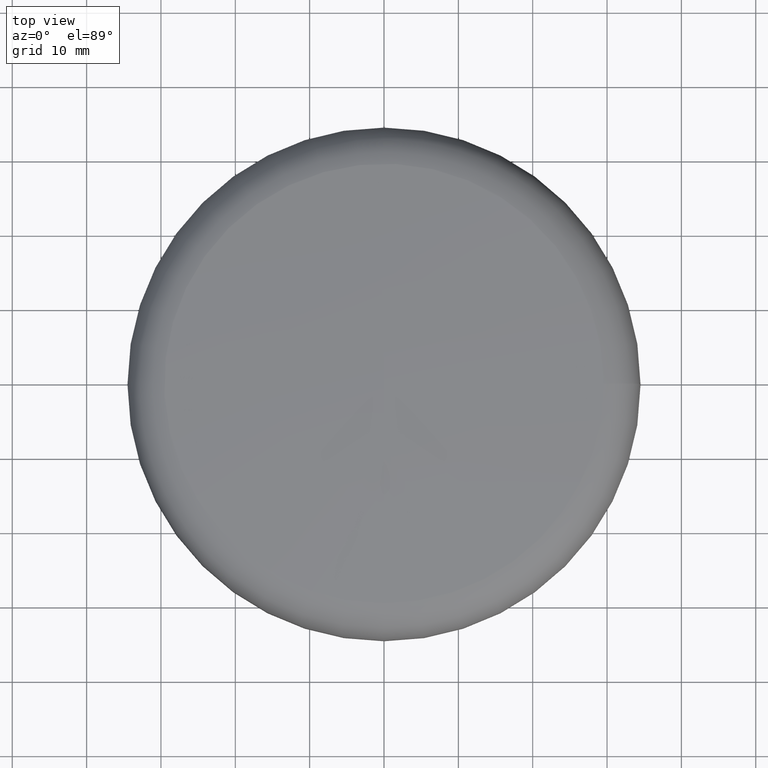
[diagram: clean part render]
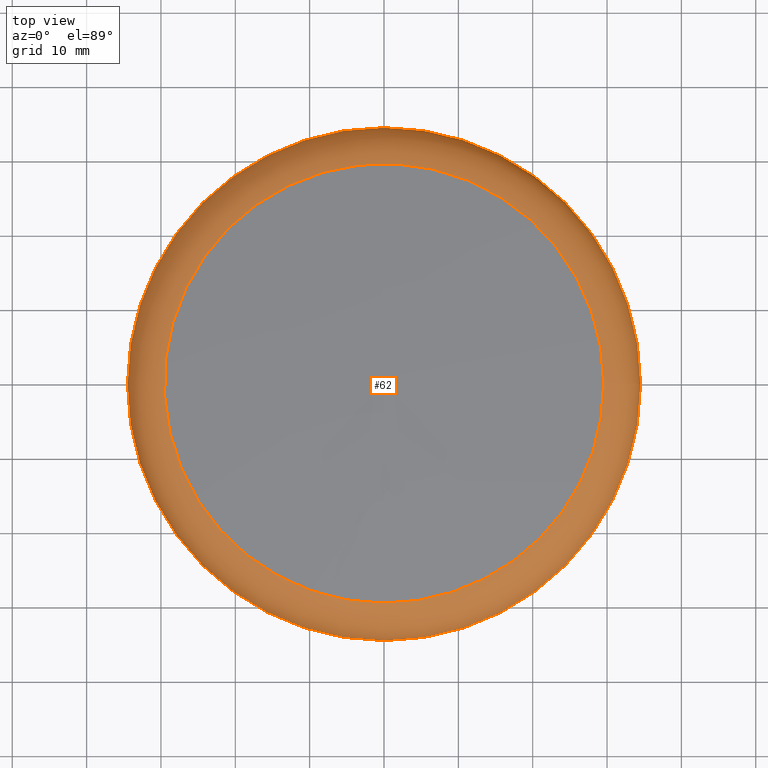
[diagram: same view with one face highlighted and labeled with its STEP entity id]
A machine part, top view. The second image highlights one B-rep face of the part: STEP entity #62.
In plain terms, the highlighted toroidal blend (fillet) surface has major radius 29 mm and minor (blend) radius 5.5 mm.
Its self-contained STEP definition (entity closure, byte-faithful):
#40=TOROIDAL_SURFACE('',#150,29.,5.50000000000017);
#43=FACE_BOUND('',#77,.T.);
#44=FACE_BOUND('',#78,.T.);
#62=ADVANCED_FACE('',(#43,#44),#40,.T.);
#77=EDGE_LOOP('',(#97));
#78=EDGE_LOOP('',(#98));
#97=ORIENTED_EDGE('',*,*,#126,.F.);
#98=ORIENTED_EDGE('',*,*,#127,.T.);
#116=VERTEX_POINT('',#214);
#117=VERTEX_POINT('',#217);
#126=EDGE_CURVE('',#116,#116,#136,.T.);
#127=EDGE_CURVE('',#117,#117,#137,.T.);
#136=CIRCLE('',#147,29.5568128385737);
#137=CIRCLE('',#149,34.5);
#147=AXIS2_PLACEMENT_3D('',#213,#170,#171);
#149=AXIS2_PLACEMENT_3D('',#216,#174,#175);
#150=AXIS2_PLACEMENT_3D('',#218,#176,#177);
#170=DIRECTION('',(0.,0.,1.));
#171=DIRECTION('',(1.,0.,0.));
#174=DIRECTION('',(0.,0.,1.));
#175=DIRECTION('',(1.,0.,0.));
#176=DIRECTION('',(0.,0.,1.));
#177=DIRECTION('',(1.,0.,0.));
#213=CARTESIAN_POINT('',(0.,0.,11.0000000000001));
#214=CARTESIAN_POINT('',(29.5568128385737,0.,11.0000000000001));
#216=CARTESIAN_POINT('',(0.,0.,5.52825809610859));
#217=CARTESIAN_POINT('',(34.5,0.,5.52825809610859));
#218=CARTESIAN_POINT('',(0.,0.,5.52825809610863));